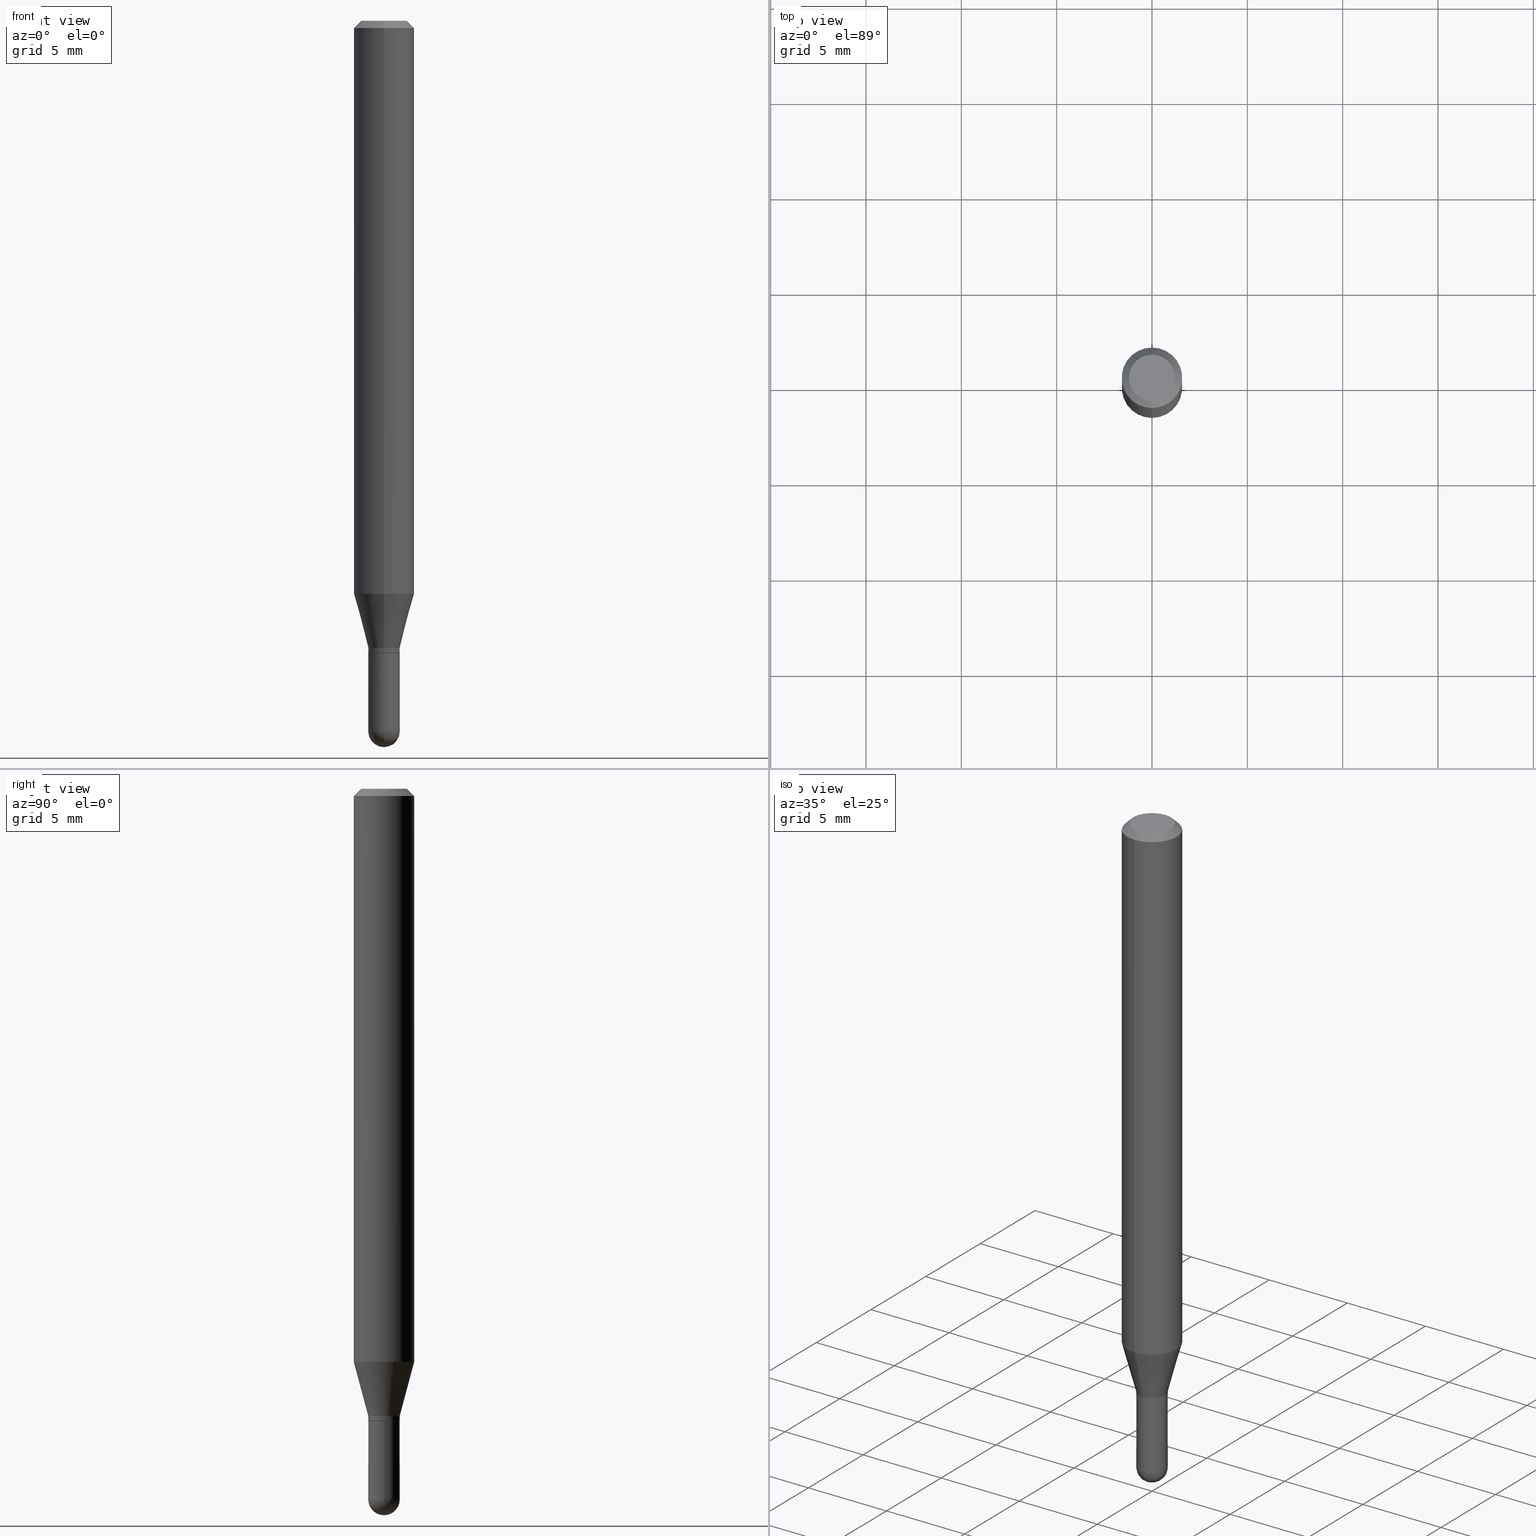
[diagram: canonical four-view strip — front | top / right | iso, engineering-drawing reading convention]
A machine part, canonical four-view strip (front | top / right | iso — engineering-drawing reading convention). The complete STEP part file that produces these views, byte-faithful:
ISO-10303-21;
HEADER;
FILE_DESCRIPTION (( 'STEP AP203' ),
    '1' );
FILE_NAME ('00939.STEP',
    '2024-03-07T19:03:50',
    ( '' ),
    ( '' ),
    'SwSTEP 2.0',
    'SolidWorks 2023',
    '' );
FILE_SCHEMA (( 'CONFIG_CONTROL_DESIGN' ));
ENDSEC;

DATA;
#1 = CARTESIAN_POINT ( 'NONE',  ( -2.269462870247733265E-16, -0.03250000000000471262, -1.295000000000000151 ) ) ;
#2 = ADVANCED_FACE ( 'NONE', ( #304 ), #237, .T. ) ;
#3 = DIRECTION ( 'NONE',  ( -2.445483904847070983E-29, 3.491459716699893676E-15, 1.000000000000000000 ) ) ;
#4 = ORIENTED_EDGE ( 'NONE', *, *, #117, .T. ) ;
#5 = VERTEX_POINT ( 'NONE', #261 ) ;
#6 = VERTEX_POINT ( 'NONE', #15 ) ;
#7 = DIRECTION ( 'NONE',  ( -2.445483904847070703E-29, 3.491459716699893676E-15, 1.000000000000000000 ) ) ;
#8 = AXIS2_PLACEMENT_3D ( 'NONE', #371, #413, #268 ) ;
#9 = ADVANCED_FACE ( 'NONE', ( #407 ), #225, .F. ) ;
#10 = APPROVAL_DATE_TIME ( #400, #178 ) ;
#11 = CC_DESIGN_PERSON_AND_ORGANIZATION_ASSIGNMENT ( #161, #122, ( #412 ) ) ;
#12 = PERSON_AND_ORGANIZATION_ROLE ( 'design_owner' ) ;
#13 = FACE_OUTER_BOUND ( 'NONE', #449, .T. ) ;
#14 = CARTESIAN_POINT ( 'NONE',  ( 3.668225857270608366E-31, -5.237189575049843177E-17, -0.01500000000000000812 ) ) ;
#15 = CARTESIAN_POINT ( 'NONE',  ( 0.03250000000000000111, -4.783329434215109105E-15, -1.305000000000000160 ) ) ;
#16 = DATE_TIME_ROLE ( 'creation_date' ) ;
#17 = DIRECTION ( 'NONE',  ( -2.445483904847070703E-29, 3.491459716699893676E-15, 1.000000000000000000 ) ) ;
#18 = AXIS2_PLACEMENT_3D ( 'NONE', #465, #90, #111 ) ;
#19 = ORIENTED_EDGE ( 'NONE', *, *, #83, .T. ) ;
#20 = ORIENTED_EDGE ( 'NONE', *, *, #229, .T. ) ;
#21 = PERSON ( 'UNSPECIFIED', 'UNSPECIFIED', 'UNSPECIFIED', ('UNSPECIFIED'), ('UNSPECIFIED'), ('UNSPECIFIED') ) ;
#22 = CALENDAR_DATE ( 2024, 7, 3 ) ;
#23 = FACE_OUTER_BOUND ( 'NONE', #457, .T. ) ;
#24 = DIRECTION ( 'NONE',  ( 1.000000000000000000, -6.982962677686267499E-15, 4.876176775795936353E-29 ) ) ;
#25 = EDGE_CURVE ( 'NONE', #87, #495, #62, .T. ) ;
#26 = CIRCLE ( 'NONE', #171, 0.03250000000000000111 ) ;
#27 = ORIENTED_EDGE ( 'NONE', *, *, #210, .F. ) ;
#28 = CC_DESIGN_PERSON_AND_ORGANIZATION_ASSIGNMENT ( #359, #159, ( #492 ) ) ;
#29 = FACE_OUTER_BOUND ( 'NONE', #106, .T. ) ;
#30 = EDGE_LOOP ( 'NONE', ( #103, #140, #436, #460 ) ) ;
#31 = CYLINDRICAL_SURFACE ( 'NONE', #191, 0.03250000000000005662 ) ;
#32 = ADVANCED_FACE ( 'NONE', ( #23 ), #217, .T. ) ;
#33 = DIRECTION ( 'NONE',  ( -7.105427357601001859E-15, -1.000000000000000000, 0.000000000000000000 ) ) ;
#34 = CARTESIAN_POINT ( 'NONE',  ( -2.234548056859285938E-16, -0.03200000000000455258, -1.305000000000000160 ) ) ;
#35 = EDGE_LOOP ( 'NONE', ( #329, #19, #355, #415 ) ) ;
#36 = AXIS2_PLACEMENT_3D ( 'NONE', #162, #37, #356 ) ;
#37 = DIRECTION ( 'NONE',  ( 2.445483904847070703E-29, -3.491459716699893676E-15, -1.000000000000000000 ) ) ;
#38 = CARTESIAN_POINT ( 'NONE',  ( 3.191356495825427860E-29, -4.556354930293361468E-15, -1.305000000000000160 ) ) ;
#39 = DIRECTION ( 'NONE',  ( -2.445483904847070703E-29, 3.491459716699893676E-15, 1.000000000000000000 ) ) ;
#40 = CARTESIAN_POINT ( 'NONE',  ( 4.440892098500912124E-16, 0.06249999999999582972, -1.183038475772935527 ) ) ;
#41 = ADVANCED_FACE ( 'NONE', ( #260 ), #221, .F. ) ;
#42 = AXIS2_PLACEMENT_3D ( 'NONE', #408, #214, #101 ) ;
#43 = ORIENTED_EDGE ( 'NONE', *, *, #255, .F. ) ;
#44 = CIRCLE ( 'NONE', #482, 0.03250000000000018846 ) ;
#45 = LINE ( 'NONE', #316, #94 ) ;
#46 = FACE_OUTER_BOUND ( 'NONE', #308, .T. ) ;
#47 = SECURITY_CLASSIFICATION_LEVEL ( 'unclassified' ) ;
#48 = DIRECTION ( 'NONE',  ( -2.445468806185136597E-29, 3.491481338843145583E-15, 1.000000000000000000 ) ) ;
#49 = ADVANCED_FACE ( 'NONE', ( #200 ), #153, .F. ) ;
#50 = EDGE_CURVE ( 'NONE', #270, #78, #207, .T. ) ;
#51 = APPROVAL_ROLE ( '' ) ;
#52 = CIRCLE ( 'NONE', #402, 0.03250000000000000111 ) ;
#53 = CIRCLE ( 'NONE', #116, 0.06250000000000000000 ) ;
#54 = DIRECTION ( 'NONE',  ( -6.982962677686265922E-15, -1.000000000000000000, 0.000000000000000000 ) ) ;
#55 = CALENDAR_DATE ( 2024, 7, 3 ) ;
#56 = CARTESIAN_POINT ( 'NONE',  ( 3.191356495825427860E-29, -4.556354930293361468E-15, -1.305000000000000160 ) ) ;
#57 = ORIENTED_EDGE ( 'NONE', *, *, #420, .F. ) ;
#58 = DIRECTION ( 'NONE',  ( -2.445468806185136597E-29, 3.491481338843145583E-15, 1.000000000000000000 ) ) ;
#59 = CIRCLE ( 'NONE', #311, 0.03250000000000018846 ) ;
#60 = VECTOR ( 'NONE', #479, 39.37007874015748143 ) ;
#61 = DIRECTION ( 'NONE',  ( -2.445468806185136877E-29, 3.491481338843145188E-15, 1.000000000000000000 ) ) ;
#62 = LINE ( 'NONE', #222, #511 ) ;
#63 = DIRECTION ( 'NONE',  ( -6.982962677686265922E-15, -1.000000000000000000, 3.491459716699893676E-15 ) ) ;
#64 = EDGE_CURVE ( 'NONE', #97, #78, #157, .T. ) ;
#65 = EDGE_CURVE ( 'NONE', #300, #279, #388, .T. ) ;
#66 = ORIENTED_EDGE ( 'NONE', *, *, #325, .T. ) ;
#67 = DIRECTION ( 'NONE',  ( 6.982962677686265922E-15, 1.000000000000000000, 0.000000000000000000 ) ) ;
#68 = CC_DESIGN_APPROVAL ( #91, ( #412 ) ) ;
#69 = VERTEX_POINT ( 'NONE', #40 ) ;
#70 = LINE ( 'NONE', #362, #60 ) ;
#71 = EDGE_LOOP ( 'NONE', ( #66, #77, #454, #73 ) ) ;
#72 = DIRECTION ( 'NONE',  ( -1.000000000000000000, 7.105427357601001070E-15, -4.926315508542082329E-29 ) ) ;
#73 = ORIENTED_EDGE ( 'NONE', *, *, #65, .F. ) ;
#74 = FACE_OUTER_BOUND ( 'NONE', #71, .T. ) ;
#75 = DIRECTION ( 'NONE',  ( -2.445483904847070983E-29, 3.491459716699893676E-15, 1.000000000000000000 ) ) ;
#76 = EDGE_CURVE ( 'NONE', #78, #263, #297, .T. ) ;
#77 = ORIENTED_EDGE ( 'NONE', *, *, #167, .T. ) ;
#78 = VERTEX_POINT ( 'NONE', #319 ) ;
#79 = AXIS2_PLACEMENT_3D ( 'NONE', #430, #312, #234 ) ;
#80 = AXIS2_PLACEMENT_3D ( 'NONE', #204, #72, #33 ) ;
#81 = DIRECTION ( 'NONE',  ( -6.982962677686265133E-15, -1.000000000000000000, 0.000000000000000000 ) ) ;
#82 = CARTESIAN_POINT ( 'NONE',  ( 3.166901656776957032E-29, -4.521440333126363352E-15, -1.295000000000000151 ) ) ;
#83 = EDGE_CURVE ( 'NONE', #499, #300, #129, .T. ) ;
#84 = CARTESIAN_POINT ( 'NONE',  ( 2.167028059228140305E-46, -3.093903484196739978E-32, -8.861346643635572153E-18 ) ) ;
#85 = DIRECTION ( 'NONE',  ( 1.000000000000000000, -6.982962677686258033E-15, 0.000000000000000000 ) ) ;
#86 = CLOSED_SHELL ( 'NONE', ( #212, #323, #32, #128, #2, #99, #251, #394, #49, #9, #177, #295 ) ) ;
#87 = VERTEX_POINT ( 'NONE', #504 ) ;
#88 = CIRCLE ( 'NONE', #18, 0.03250000000000000111 ) ;
#89 = DIRECTION ( 'NONE',  ( -1.000000000000000000, 6.982962677686265922E-15, -4.883557194083112340E-29 ) ) ;
#90 = DIRECTION ( 'NONE',  ( -2.445468806185136597E-29, 3.491481338843145583E-15, 1.000000000000000000 ) ) ;
#91 = APPROVAL ( #348, 'UNSPECIFIED' ) ;
#92 = DIRECTION ( 'NONE',  ( 1.000000000000000000, 0.000000000000000000, 0.000000000000000000 ) ) ;
#93 = VECTOR ( 'NONE', #405, 39.37007874015748143 ) ;
#94 = VECTOR ( 'NONE', #118, 39.37007874015748143 ) ;
#95 = CC_DESIGN_APPROVAL ( #178, ( #339 ) ) ;
#96 = PERSON_AND_ORGANIZATION ( #21, #182 ) ;
#97 = VERTEX_POINT ( 'NONE', #464 ) ;
#98 = CARTESIAN_POINT ( 'NONE',  ( 0.000000000000000000, 0.000000000000000000, 0.000000000000000000 ) ) ;
#99 = ADVANCED_FACE ( 'NONE', ( #393 ), #105, .T. ) ;
#100 = DIRECTION ( 'NONE',  ( -2.445483904847070703E-29, 3.491459716699893676E-15, 1.000000000000000000 ) ) ;
#101 = DIRECTION ( 'NONE',  ( -6.982962677686265922E-15, -1.000000000000000000, 3.491459716699893676E-15 ) ) ;
#102 = ORIENTED_EDGE ( 'NONE', *, *, #273, .F. ) ;
#103 = ORIENTED_EDGE ( 'NONE', *, *, #288, .T. ) ;
#104 = CARTESIAN_POINT ( 'NONE',  ( 4.364351673553919652E-16, 0.06249999999999995143, -0.01500000000000022669 ) ) ;
#105 = CONICAL_SURFACE ( 'NONE', #115, 0.03250000000000018846, 0.2617993877991506846 ) ;
#106 = EDGE_LOOP ( 'NONE', ( #444, #365, #509, #102 ) ) ;
#107 = DIRECTION ( 'NONE',  ( 6.982962677686265922E-15, 1.000000000000000000, 0.000000000000000000 ) ) ;
#108 = AXIS2_PLACEMENT_3D ( 'NONE', #38, #281, #81 ) ;
#109 = LOCAL_TIME ( 14, 3, 50.00000000000000000, #456 ) ;
#110 = ORIENTED_EDGE ( 'NONE', *, *, #255, .T. ) ;
#111 = DIRECTION ( 'NONE',  ( 1.000000000000000000, -6.982962677686258033E-15, 0.000000000000000000 ) ) ;
#112 = DIRECTION ( 'NONE',  ( -2.445483904847070703E-29, 3.491459716699893676E-15, 1.000000000000000000 ) ) ;
#113 = MANIFOLD_SOLID_BREP ( 'Body-Move/Copy2[1]', #491 ) ;
#114 = CARTESIAN_POINT ( 'NONE',  ( 3.375077994860785550E-16, 0.03249999999999567124, -1.295000000000000151 ) ) ;
#115 = AXIS2_PLACEMENT_3D ( 'NONE', #435, #39, #156 ) ;
#116 = AXIS2_PLACEMENT_3D ( 'NONE', #166, #332, #445 ) ;
#117 = EDGE_CURVE ( 'NONE', #424, #341, #59, .T. ) ;
#118 = DIRECTION ( 'NONE',  ( -2.445483904847070983E-29, 3.491459716699893676E-15, 1.000000000000000000 ) ) ;
#119 = EDGE_CURVE ( 'NONE', #483, #341, #353, .T. ) ;
#120 = FACE_OUTER_BOUND ( 'NONE', #294, .T. ) ;
#121 = DIRECTION ( 'NONE',  ( -6.982962677686265133E-15, -1.000000000000000000, 0.000000000000000000 ) ) ;
#122 = PERSON_AND_ORGANIZATION_ROLE ( 'classification_officer' ) ;
#123 = DIRECTION ( 'NONE',  ( -6.982962677686266711E-15, -1.000000000000000000, 0.000000000000000000 ) ) ;
#124 = DIRECTION ( 'NONE',  ( -6.982962677686265922E-15, -1.000000000000000000, 3.483106191921935554E-15 ) ) ;
#125 = EDGE_CURVE ( 'NONE', #69, #379, #45, .T. ) ;
#126 = APPLICATION_CONTEXT ( 'configuration controlled 3d designs of mechanical parts and assemblies' ) ;
#127 = DIRECTION ( 'NONE',  ( 0.000000000000000000, 0.000000000000000000, 1.000000000000000000 ) ) ;
#128 = ADVANCED_FACE ( 'NONE', ( #120 ), #287, .T. ) ;
#129 = CIRCLE ( 'NONE', #108, 0.03200000000000000067 ) ;
#130 = DIRECTION ( 'NONE',  ( -6.982962677686265922E-15, -1.000000000000000000, 4.370956789862821150E-15 ) ) ;
#131 =( CONVERSION_BASED_UNIT ( 'INCH', #493 ) LENGTH_UNIT ( ) NAMED_UNIT ( #230 ) );
#132 = ORIENTED_EDGE ( 'NONE', *, *, #370, .F. ) ;
#133 = CYLINDRICAL_SURFACE ( 'NONE', #429, 0.03250000000000005662 ) ;
#134 = VERTEX_POINT ( 'NONE', #466 ) ;
#135 = EDGE_CURVE ( 'NONE', #223, #5, #382, .T. ) ;
#136 = DATE_TIME_ROLE ( 'classification_date' ) ;
#137 = ORIENTED_EDGE ( 'NONE', *, *, #494, .T. ) ;
#138 = AXIS2_PLACEMENT_3D ( 'NONE', #426, #235, #391 ) ;
#139 = CONICAL_SURFACE ( 'NONE', #313, 0.03200000000000000067, 0.7853981633974739252 ) ;
#140 = ORIENTED_EDGE ( 'NONE', *, *, #119, .T. ) ;
#141 = ORIENTED_EDGE ( 'NONE', *, *, #76, .T. ) ;
#142 = CARTESIAN_POINT ( 'NONE',  ( 3.191356495825427860E-29, -4.556354930293361468E-15, -1.305000000000000160 ) ) ;
#143 = ORIENTED_EDGE ( 'NONE', *, *, #273, .T. ) ;
#144 = ORIENTED_EDGE ( 'NONE', *, *, #303, .T. ) ;
#145 = CARTESIAN_POINT ( 'NONE',  ( 3.668225857270608366E-31, -5.237189575049843177E-17, -0.01500000000000000812 ) ) ;
#146 = CARTESIAN_POINT ( 'NONE',  ( -2.269462870248040428E-16, -0.03250000000000005662, 1.134724407927467377E-16 ) ) ;
#147 = ORIENTED_EDGE ( 'NONE', *, *, #446, .T. ) ;
#148 = EDGE_CURVE ( 'NONE', #5, #223, #447, .T. ) ;
#149 = EDGE_CURVE ( 'NONE', #495, #379, #248, .T. ) ;
#150 = VECTOR ( 'NONE', #163, 39.37007874015748143 ) ;
#151 = DIRECTION ( 'NONE',  ( -2.445468806185136597E-29, 3.491481338843145583E-15, 1.000000000000000000 ) ) ;
#152 = CARTESIAN_POINT ( 'NONE',  ( 3.585946182636855061E-29, -5.127728966849546308E-15, -1.467500000000000027 ) ) ;
#153 = PLANE ( 'NONE',  #367 ) ;
#154 = EDGE_CURVE ( 'NONE', #483, #279, #417, .T. ) ;
#155 = ORIENTED_EDGE ( 'NONE', *, *, #25, .T. ) ;
#156 = DIRECTION ( 'NONE',  ( -6.982962677686266711E-15, -1.000000000000000000, 0.000000000000000000 ) ) ;
#157 = CIRCLE ( 'NONE', #505, 0.03250000000000000111 ) ;
#158 = LOCAL_TIME ( 14, 3, 50.00000000000000000, #197 ) ;
#159 = PERSON_AND_ORGANIZATION_ROLE ( 'design_supplier' ) ;
#160 = DIRECTION ( 'NONE',  ( -2.445468806185136597E-29, 3.491481338843145583E-15, 1.000000000000000000 ) ) ;
#161 = PERSON_AND_ORGANIZATION ( #21, #182 ) ;
#162 = CARTESIAN_POINT ( 'NONE',  ( 3.668225857270608366E-31, -5.237189575049843177E-17, -0.01500000000000000812 ) ) ;
#163 = DIRECTION ( 'NONE',  ( -4.851104656540964275E-15, -0.7071067811865500152, -0.7071067811865450192 ) ) ;
#164 = AXIS2_PLACEMENT_3D ( 'NONE', #84, #241, #246 ) ;
#165 = ORIENTED_EDGE ( 'NONE', *, *, #148, .T. ) ;
#166 = CARTESIAN_POINT ( 'NONE',  ( 2.893101551317524200E-29, -4.130531181467246054E-15, -1.183038475772935305 ) ) ;
#167 = EDGE_CURVE ( 'NONE', #499, #483, #334, .T. ) ;
#168 = CARTESIAN_POINT ( 'NONE',  ( 0.000000000000000000, 0.000000000000000000, 0.000000000000000000 ) ) ;
#169 = CARTESIAN_POINT ( 'NONE',  ( -4.364351673553912750E-16, -0.06250000000000005551, -0.01499999999999979128 ) ) ;
#170 = CARTESIAN_POINT ( 'NONE',  ( 3.191356495825427860E-29, -4.556354930293361468E-15, -1.305000000000000160 ) ) ;
#171 = AXIS2_PLACEMENT_3D ( 'NONE', #327, #160, #250 ) ;
#172 = CYLINDRICAL_SURFACE ( 'NONE', #345, 0.03250000000000000111 ) ;
#173 = CC_DESIGN_APPROVAL ( #195, ( #492 ) ) ;
#174 = PERSON_AND_ORGANIZATION_ROLE ( 'creator' ) ;
#175 = ORIENTED_EDGE ( 'NONE', *, *, #325, .F. ) ;
#176 = ORIENTED_EDGE ( 'NONE', *, *, #149, .F. ) ;
#177 = ADVANCED_FACE ( 'NONE', ( #486 ), #283, .T. ) ;
#178 = APPROVAL ( #213, 'UNSPECIFIED' ) ;
#179 = FACE_OUTER_BOUND ( 'NONE', #30, .T. ) ;
#180 = EDGE_LOOP ( 'NONE', ( #318, #165 ) ) ;
#181 = VECTOR ( 'NONE', #61, 39.37007874015748143 ) ;
#182 = ORGANIZATION ( 'UNSPECIFIED', 'UNSPECIFIED', '' ) ;
#183 = ORIENTED_EDGE ( 'NONE', *, *, #420, .T. ) ;
#184 = ORIENTED_EDGE ( 'NONE', *, *, #135, .F. ) ;
#185 = CARTESIAN_POINT ( 'NONE',  ( 2.309263891220655525E-16, 0.03249999999999567124, -1.295000000000000151 ) ) ;
#186 = ADVANCED_FACE ( 'NONE', ( #13 ), #438, .T. ) ;
#187 = ORIENTED_EDGE ( 'NONE', *, *, #498, .T. ) ;
#188 = CARTESIAN_POINT ( 'NONE',  ( 3.191356495825427860E-29, -4.556354930293361468E-15, -1.305000000000000160 ) ) ;
#189 = CARTESIAN_POINT ( 'NONE',  ( 3.316907271900976096E-16, 0.04749999999999999362, -1.702750098650627183E-16 ) ) ;
#190 = AXIS2_PLACEMENT_3D ( 'NONE', #437, #203, #286 ) ;
#191 = AXIS2_PLACEMENT_3D ( 'NONE', #351, #289, #477 ) ;
#192 = CARTESIAN_POINT ( 'NONE',  ( 3.166901656776957032E-29, -4.521440333126363352E-15, -1.295000000000000151 ) ) ;
#193 = DIRECTION ( 'NONE',  ( -2.445483904847070703E-29, 3.491459716699893676E-15, 1.000000000000000000 ) ) ;
#194 = EDGE_CURVE ( 'NONE', #223, #379, #361, .T. ) ;
#195 = APPROVAL ( #244, 'UNSPECIFIED' ) ;
#196 = CARTESIAN_POINT ( 'NONE',  ( 3.588725473076687933E-29, -5.123748864752316500E-15, -1.467500000000000027 ) ) ;
#197 = COORDINATED_UNIVERSAL_TIME_OFFSET ( 5, 0, .BEHIND. ) ;
#198 = PERSON_AND_ORGANIZATION_ROLE ( 'creator' ) ;
#199 = ORIENTED_EDGE ( 'NONE', *, *, #83, .F. ) ;
#200 = FACE_OUTER_BOUND ( 'NONE', #180, .T. ) ;
#201 = AXIS2_PLACEMENT_3D ( 'NONE', #290, #89, #67 ) ;
#202 = APPROVAL_PERSON_ORGANIZATION ( #96, #178, #51 ) ;
#203 = DIRECTION ( 'NONE',  ( -2.445483904847070703E-29, 3.491459716699893676E-15, 1.000000000000000000 ) ) ;
#204 = CARTESIAN_POINT ( 'NONE',  ( 3.585946182636855061E-29, -5.127728966849546308E-15, -1.467500000000000027 ) ) ;
#205 = ORIENTED_EDGE ( 'NONE', *, *, #344, .T. ) ;
#206 = DIRECTION ( 'NONE',  ( 1.000000000000000000, -6.982962677686267499E-15, 4.876176775795936353E-29 ) ) ;
#207 = CIRCLE ( 'NONE', #79, 0.03250000000000000111 ) ;
#208 = CIRCLE ( 'NONE', #373, 0.06250000000000000000 ) ;
#209 = DIRECTION ( 'NONE',  ( -2.445483904847070703E-29, 3.491459716699893676E-15, 1.000000000000000000 ) ) ;
#210 = EDGE_CURVE ( 'NONE', #270, #6, #272, .T. ) ;
#211 = LINE ( 'NONE', #296, #150 ) ;
#212 = ADVANCED_FACE ( 'NONE', ( #179 ), #133, .T. ) ;
#213 = APPROVAL_STATUS ( 'not_yet_approved' ) ;
#214 = DIRECTION ( 'NONE',  ( -2.445483904847070703E-29, 3.491459716699893676E-15, 1.000000000000000000 ) ) ;
#215 = PERSON_AND_ORGANIZATION ( #21, #182 ) ;
#216 = EDGE_LOOP ( 'NONE', ( #175, #199 ) ) ;
#217 = CONICAL_SURFACE ( 'NONE', #291, 0.06250000000000000000, 0.7853981633974483900 ) ;
#218 = DIRECTION ( 'NONE',  ( 4.937700262164548042E-15, 0.7071067811865451302, -0.7071067811865499042 ) ) ;
#219 = VECTOR ( 'NONE', #350, 39.37007874015748143 ) ;
#220 = ADVANCED_FACE ( 'NONE', ( #301 ), #172, .T. ) ;
#221 = PLANE ( 'NONE',  #381 ) ;
#222 = CARTESIAN_POINT ( 'NONE',  ( -4.364351673553916201E-16, -0.06250000000000000000, 2.182162322937433548E-16 ) ) ;
#223 = VERTEX_POINT ( 'NONE', #451 ) ;
#224 = ORIENTED_EDGE ( 'NONE', *, *, #194, .T. ) ;
#225 = PLANE ( 'NONE',  #390 ) ;
#226 = CARTESIAN_POINT ( 'NONE',  ( 0.03250000000000000111, -2.269462870248036977E-16, 1.584757452133679343E-30 ) ) ;
#227 = AXIS2_PLACEMENT_3D ( 'NONE', #357, #193, #442 ) ;
#228 = CIRCLE ( 'NONE', #496, 0.03200000000000000067 ) ;
#229 = EDGE_CURVE ( 'NONE', #134, #6, #52, .T. ) ;
#230 = DIMENSIONAL_EXPONENTS ( 1.000000000000000000, 0.000000000000000000, 0.000000000000000000, 0.000000000000000000, 0.000000000000000000, 0.000000000000000000, 0.000000000000000000 ) ;
#231 = CYLINDRICAL_SURFACE ( 'NONE', #257, 0.03250000000000000111 ) ;
#232 = VERTEX_POINT ( 'NONE', #490 ) ;
#233 = CARTESIAN_POINT ( 'NONE',  ( -2.269462870247719953E-16, -0.03250000000000458772, -1.304500000000000215 ) ) ;
#234 = DIRECTION ( 'NONE',  ( 1.000000000000000000, -6.982962677686258033E-15, 0.000000000000000000 ) ) ;
#235 = DIRECTION ( 'NONE',  ( -2.445483904847070703E-29, 3.491459716699893676E-15, 1.000000000000000000 ) ) ;
#236 = CC_DESIGN_PERSON_AND_ORGANIZATION_ASSIGNMENT ( #299, #12, ( #485 ) ) ;
#237 = CONICAL_SURFACE ( 'NONE', #8, 0.03250000000000018846, 0.2617993877991506846 ) ;
#238 = APPROVAL_PERSON_ORGANIZATION ( #471, #195, #470 ) ;
#239 = ORIENTED_EDGE ( 'NONE', *, *, #154, .T. ) ;
#240 = APPROVAL_DATE_TIME ( #439, #195 ) ;
#241 = DIRECTION ( 'NONE',  ( -2.445483904847070703E-29, 3.491459716699893676E-15, 1.000000000000000000 ) ) ;
#242 = CALENDAR_DATE ( 2024, 7, 3 ) ;
#243 = DIRECTION ( 'NONE',  ( 6.982962677686265922E-15, 1.000000000000000000, -3.483106191921935554E-15 ) ) ;
#244 = APPROVAL_STATUS ( 'not_yet_approved' ) ;
#245 = ORIENTED_EDGE ( 'NONE', *, *, #330, .T. ) ;
#246 = DIRECTION ( 'NONE',  ( -6.982962677686266711E-15, -1.000000000000000000, 3.491459716699894071E-15 ) ) ;
#247 = DIRECTION ( 'NONE',  ( -6.982962677686265133E-15, -1.000000000000000000, 0.000000000000000000 ) ) ;
#248 = CIRCLE ( 'NONE', #227, 0.06250000000000000000 ) ;
#249 = APPLICATION_CONTEXT ( 'configuration controlled 3d designs of mechanical parts and assemblies' ) ;
#250 = DIRECTION ( 'NONE',  ( 1.000000000000000000, -6.982962677686258033E-15, 0.000000000000000000 ) ) ;
#251 = ADVANCED_FACE ( 'NONE', ( #374 ), #411, .T. ) ;
#252 = ORIENTED_EDGE ( 'NONE', *, *, #459, .F. ) ;
#253 = CARTESIAN_POINT ( 'NONE',  ( 0.03250000000000000111, -5.067012292996114873E-15, -1.467500000000000027 ) ) ;
#254 = CARTESIAN_POINT ( 'NONE',  ( 0.000000000000000000, 0.000000000000000000, 0.000000000000000000 ) ) ;
#255 = EDGE_CURVE ( 'NONE', #6, #134, #26, .T. ) ;
#256 = MECHANICAL_CONTEXT ( 'NONE', #126, 'mechanical' ) ;
#257 = AXIS2_PLACEMENT_3D ( 'NONE', #335, #48, #206 ) ;
#258 = CARTESIAN_POINT ( 'NONE',  ( 2.273736754432639145E-16, 0.03199999999999544181, -1.305000000000000160 ) ) ;
#259 =( LENGTH_UNIT ( ) NAMED_UNIT ( * ) SI_UNIT ( $, .METRE. ) );
#260 = FACE_OUTER_BOUND ( 'NONE', #310, .T. ) ;
#261 = CARTESIAN_POINT ( 'NONE',  ( -3.773273898774340269E-16, -0.04749999999999999362, 1.569829898996093817E-16 ) ) ;
#262 = DIRECTION ( 'NONE',  ( -2.445483904847070703E-29, 3.491459716699893676E-15, 1.000000000000000000 ) ) ;
#263 = VERTEX_POINT ( 'NONE', #328 ) ;
#264 = DIRECTION ( 'NONE',  ( 1.000000000000000000, -6.982962677686258033E-15, 0.000000000000000000 ) ) ;
#265 = ORIENTED_EDGE ( 'NONE', *, *, #330, .F. ) ;
#266 = VECTOR ( 'NONE', #218, 39.37007874015748143 ) ;
#267 = CC_DESIGN_DATE_AND_TIME_ASSIGNMENT ( #401, #16, ( #339 ) ) ;
#268 = DIRECTION ( 'NONE',  ( -6.982962677686266711E-15, -1.000000000000000000, 0.000000000000000000 ) ) ;
#269 = DATE_AND_TIME ( #242, #158 ) ;
#270 = VERTEX_POINT ( 'NONE', #253 ) ;
#271 = ORIENTED_EDGE ( 'NONE', *, *, #125, .F. ) ;
#272 = LINE ( 'NONE', #226, #181 ) ;
#273 = EDGE_CURVE ( 'NONE', #232, #270, #461, .T. ) ;
#274 = DATE_AND_TIME ( #22, #109 ) ;
#275 = DIRECTION ( 'NONE',  ( -2.445483904847070703E-29, 3.491459716699893676E-15, 1.000000000000000000 ) ) ;
#276 = DIRECTION ( 'NONE',  ( -2.445483904847070703E-29, 3.491459716699893676E-15, 1.000000000000000000 ) ) ;
#277 = DIRECTION ( 'NONE',  ( -6.982962677686266711E-15, -1.000000000000000000, 0.000000000000000000 ) ) ;
#278 = EDGE_LOOP ( 'NONE', ( #4, #183, #317, #421 ) ) ;
#279 = VERTEX_POINT ( 'NONE', #233 ) ;
#280 = CC_DESIGN_PERSON_AND_ORGANIZATION_ASSIGNMENT ( #215, #174, ( #339 ) ) ;
#281 = DIRECTION ( 'NONE',  ( -2.445483904847070703E-29, 3.491459716699893676E-15, 1.000000000000000000 ) ) ;
#282 = DIRECTION ( 'NONE',  ( -2.445468806185136597E-29, 3.491481338843145583E-15, 1.000000000000000000 ) ) ;
#283 = CONICAL_SURFACE ( 'NONE', #481, 0.03200000000000000067, 0.7853981633974739252 ) ;
#284 = ORIENTED_EDGE ( 'NONE', *, *, #50, .T. ) ;
#285 = AXIS2_PLACEMENT_3D ( 'NONE', #398, #151, #85 ) ;
#286 = DIRECTION ( 'NONE',  ( -6.982962677686265922E-15, -1.000000000000000000, 3.491459716699893676E-15 ) ) ;
#287 = CYLINDRICAL_SURFACE ( 'NONE', #190, 0.06250000000000000000 ) ;
#288 = EDGE_CURVE ( 'NONE', #279, #483, #337, .T. ) ;
#289 = DIRECTION ( 'NONE',  ( -2.445483904847070703E-29, 3.491459716699893676E-15, 1.000000000000000000 ) ) ;
#290 = CARTESIAN_POINT ( 'NONE',  ( 3.585946182636855061E-29, -5.127728966849546308E-15, -1.467500000000000027 ) ) ;
#291 = AXIS2_PLACEMENT_3D ( 'NONE', #145, #363, #243 ) ;
#292 = LINE ( 'NONE', #185, #219 ) ;
#293 = MANIFOLD_SOLID_BREP ( 'Body-Move/Copy2[2]', #86 ) ;
#294 = EDGE_LOOP ( 'NONE', ( #187, #502, #176, #467 ) ) ;
#295 = ADVANCED_FACE ( 'NONE', ( #46 ), #31, .T. ) ;
#296 = CARTESIAN_POINT ( 'NONE',  ( -4.287811248607203282E-16, -0.06250000000000005551, -0.01499999999999979128 ) ) ;
#297 = CIRCLE ( 'NONE', #321, 0.03250000000000000111 ) ;
#298 = APPROVAL_PERSON_ORGANIZATION ( #376, #91, #375 ) ;
#299 = PERSON_AND_ORGANIZATION ( #21, #182 ) ;
#300 = VERTEX_POINT ( 'NONE', #387 ) ;
#301 = FACE_OUTER_BOUND ( 'NONE', #410, .T. ) ;
#302 =( NAMED_UNIT ( * ) SI_UNIT ( $, .STERADIAN. ) SOLID_ANGLE_UNIT ( ) );
#303 = EDGE_CURVE ( 'NONE', #97, #232, #474, .T. ) ;
#304 = FACE_OUTER_BOUND ( 'NONE', #278, .T. ) ;
#305 = ORIENTED_EDGE ( 'NONE', *, *, #119, .F. ) ;
#306 = EDGE_CURVE ( 'NONE', #424, #87, #70, .T. ) ;
#307 = ORIENTED_EDGE ( 'NONE', *, *, #494, .F. ) ;
#308 = EDGE_LOOP ( 'NONE', ( #305, #239, #205, #265 ) ) ;
#309 = FACE_OUTER_BOUND ( 'NONE', #497, .T. ) ;
#310 = EDGE_LOOP ( 'NONE', ( #110, #20 ) ) ;
#311 = AXIS2_PLACEMENT_3D ( 'NONE', #82, #112, #277 ) ;
#312 = DIRECTION ( 'NONE',  ( -2.445468806185136597E-29, 3.491481338843145583E-15, 1.000000000000000000 ) ) ;
#313 = AXIS2_PLACEMENT_3D ( 'NONE', #188, #275, #463 ) ;
#314 = ORIENTED_EDGE ( 'NONE', *, *, #488, .F. ) ;
#315 = DIRECTION ( 'NONE',  ( -1.000000000000000000, 6.982962677686265922E-15, -4.883557194083112340E-29 ) ) ;
#316 = CARTESIAN_POINT ( 'NONE',  ( 4.440892098500625669E-16, 0.06250000000000000000, -2.182162322937433548E-16 ) ) ;
#317 = ORIENTED_EDGE ( 'NONE', *, *, #498, .F. ) ;
#318 = ORIENTED_EDGE ( 'NONE', *, *, #135, .T. ) ;
#319 = CARTESIAN_POINT ( 'NONE',  ( 2.269462870248395415E-16, 0.03249999999999488021, -1.467500000000000027 ) ) ;
#320 = ORIENTED_EDGE ( 'NONE', *, *, #76, .F. ) ;
#321 = AXIS2_PLACEMENT_3D ( 'NONE', #196, #282, #476 ) ;
#322 = LOCAL_TIME ( 14, 3, 50.00000000000000000, #450 ) ;
#323 = ADVANCED_FACE ( 'NONE', ( #74 ), #139, .T. ) ;
#324 = CARTESIAN_POINT ( 'NONE',  ( 2.269462870248355479E-16, 0.03249999999999544226, -1.305000000000000160 ) ) ;
#325 = EDGE_CURVE ( 'NONE', #300, #499, #228, .T. ) ;
#326 = PERSON_AND_ORGANIZATION ( #21, #182 ) ;
#327 = CARTESIAN_POINT ( 'NONE',  ( 3.191336792071603685E-29, -4.556383147190305752E-15, -1.305000000000000160 ) ) ;
#328 = CARTESIAN_POINT ( 'NONE',  ( -0.03250000000000000111, -4.609139616849279150E-15, -1.467500000000000027 ) ) ;
#329 = ORIENTED_EDGE ( 'NONE', *, *, #167, .F. ) ;
#330 = EDGE_CURVE ( 'NONE', #341, #424, #44, .T. ) ;
#331 = AXIS2_PLACEMENT_3D ( 'NONE', #404, #262, #54 ) ;
#332 = DIRECTION ( 'NONE',  ( -2.445483904847070703E-29, 3.491459716699893676E-15, 1.000000000000000000 ) ) ;
#333 = CARTESIAN_POINT ( 'NONE',  ( -0.03250000000000000111, 2.309263891220325683E-16, -1.598653904332844407E-30 ) ) ;
#334 = LINE ( 'NONE', #258, #93 ) ;
#335 = CARTESIAN_POINT ( 'NONE',  ( 0.000000000000000000, 0.000000000000000000, 0.000000000000000000 ) ) ;
#336 = CARTESIAN_POINT ( 'NONE',  ( 3.191336792071603685E-29, -4.556383147190305752E-15, -1.305000000000000160 ) ) ;
#337 = CIRCLE ( 'NONE', #368, 0.03249999999999992478 ) ;
#338 = DIRECTION ( 'NONE',  ( -2.445483904847070142E-29, 3.491459716699893676E-15, 1.000000000000000000 ) ) ;
#339 = PRODUCT_DEFINITION ( 'UNKNOWN', '', #492, #480 ) ;
#340 = COORDINATED_UNIVERSAL_TIME_OFFSET ( 5, 0, .BEHIND. ) ;
#341 = VERTEX_POINT ( 'NONE', #114 ) ;
#342 = ADVANCED_FACE ( 'NONE', ( #29 ), #507, .T. ) ;
#343 = DIRECTION ( 'NONE',  ( -6.982962677686265922E-15, -1.000000000000000000, 3.491459716699893676E-15 ) ) ;
#344 = EDGE_CURVE ( 'NONE', #279, #424, #503, .T. ) ;
#345 = AXIS2_PLACEMENT_3D ( 'NONE', #98, #378, #24 ) ;
#346 = AXIS2_PLACEMENT_3D ( 'NONE', #14, #100, #124 ) ;
#347 = ORIENTED_EDGE ( 'NONE', *, *, #229, .F. ) ;
#348 = APPROVAL_STATUS ( 'not_yet_approved' ) ;
#349 = EDGE_LOOP ( 'NONE', ( #271, #441, #155, #380 ) ) ;
#350 = DIRECTION ( 'NONE',  ( 1.839019923739603076E-15, 0.2588190451025253469, 0.9659258262890670910 ) ) ;
#351 = CARTESIAN_POINT ( 'NONE',  ( 0.000000000000000000, 0.000000000000000000, 0.000000000000000000 ) ) ;
#352 = DIRECTION ( 'NONE',  ( -2.445483904847070703E-29, 3.491459716699893676E-15, 1.000000000000000000 ) ) ;
#353 = LINE ( 'NONE', #358, #397 ) ;
#354 = CONICAL_SURFACE ( 'NONE', #36, 0.06250000000000000000, 0.7853981633974483900 ) ;
#355 = ORIENTED_EDGE ( 'NONE', *, *, #65, .T. ) ;
#356 = DIRECTION ( 'NONE',  ( 6.982962677686265922E-15, 1.000000000000000000, -3.483106191921935554E-15 ) ) ;
#357 = CARTESIAN_POINT ( 'NONE',  ( 3.668225857270608366E-31, -5.237189575049843177E-17, -0.01500000000000000812 ) ) ;
#358 = CARTESIAN_POINT ( 'NONE',  ( 2.309263891220329134E-16, 0.03250000000000005662, -1.134724407927467377E-16 ) ) ;
#359 = PERSON_AND_ORGANIZATION ( #21, #182 ) ;
#360 = DIRECTION ( 'NONE',  ( 6.982962677686265922E-15, 1.000000000000000000, 0.000000000000000000 ) ) ;
#361 = LINE ( 'NONE', #104, #266 ) ;
#362 = CARTESIAN_POINT ( 'NONE',  ( -2.269462870247733265E-16, -0.03250000000000471262, -1.295000000000000151 ) ) ;
#363 = DIRECTION ( 'NONE',  ( 2.445483904847070703E-29, -3.491459716699893676E-15, -1.000000000000000000 ) ) ;
#364 = UNCERTAINTY_MEASURE_WITH_UNIT (LENGTH_MEASURE( 1.000000000000000082E-05 ), #131, 'distance_accuracy_value', 'NONE');
#365 = ORIENTED_EDGE ( 'NONE', *, *, #64, .T. ) ;
#366 = CARTESIAN_POINT ( 'NONE',  ( 2.893101551317524200E-29, -4.130531181467246054E-15, -1.183038475772935305 ) ) ;
#367 = AXIS2_PLACEMENT_3D ( 'NONE', #189, #396, #395 ) ;
#368 = AXIS2_PLACEMENT_3D ( 'NONE', #425, #385, #419 ) ;
#369 = APPLICATION_PROTOCOL_DEFINITION ( 'international standard', 'config_control_design', 1994, #126 ) ;
#370 = EDGE_CURVE ( 'NONE', #263, #232, #88, .T. ) ;
#371 = CARTESIAN_POINT ( 'NONE',  ( 3.166901656776957032E-29, -4.521440333126363352E-15, -1.295000000000000151 ) ) ;
#372 = CALENDAR_DATE ( 2024, 7, 3 ) ;
#373 = AXIS2_PLACEMENT_3D ( 'NONE', #366, #7, #130 ) ;
#374 = FACE_OUTER_BOUND ( 'NONE', #349, .T. ) ;
#375 = APPROVAL_ROLE ( '' ) ;
#376 = PERSON_AND_ORGANIZATION ( #21, #182 ) ;
#377 = DIRECTION ( 'NONE',  ( -2.445483904847070983E-29, 3.491459716699893676E-15, 1.000000000000000000 ) ) ;
#378 = DIRECTION ( 'NONE',  ( -2.445468806185136597E-29, 3.491481338843145583E-15, 1.000000000000000000 ) ) ;
#379 = VERTEX_POINT ( 'NONE', #422 ) ;
#380 = ORIENTED_EDGE ( 'NONE', *, *, #446, .F. ) ;
#381 = AXIS2_PLACEMENT_3D ( 'NONE', #324, #473, #423 ) ;
#382 = CIRCLE ( 'NONE', #164, 0.04749999999999999362 ) ;
#383 = VECTOR ( 'NONE', #3, 39.37007874015748143 ) ;
#384 = APPROVAL_DATE_TIME ( #274, #91 ) ;
#385 = DIRECTION ( 'NONE',  ( -2.445483904847070703E-29, 3.491459716699893676E-15, 1.000000000000000000 ) ) ;
#386 = ORIENTED_EDGE ( 'NONE', *, *, #370, .T. ) ;
#387 = CARTESIAN_POINT ( 'NONE',  ( -2.234548056859285938E-16, -0.03200000000000455258, -1.305000000000000160 ) ) ;
#388 = LINE ( 'NONE', #34, #472 ) ;
#389 = CALENDAR_DATE ( 2024, 7, 3 ) ;
#390 = AXIS2_PLACEMENT_3D ( 'NONE', #170, #338, #343 ) ;
#391 = DIRECTION ( 'NONE',  ( -6.982962677686266711E-15, -1.000000000000000000, 3.491459716699894071E-15 ) ) ;
#392 = ORIENTED_EDGE ( 'NONE', *, *, #210, .T. ) ;
#393 = FACE_OUTER_BOUND ( 'NONE', #434, .T. ) ;
#394 = ADVANCED_FACE ( 'NONE', ( #309 ), #354, .T. ) ;
#395 = DIRECTION ( 'NONE',  ( 6.982962677686265922E-15, 1.000000000000000000, -3.491459716699893676E-15 ) ) ;
#396 = DIRECTION ( 'NONE',  ( 2.445483904847070142E-29, -3.491459716699893676E-15, -1.000000000000000000 ) ) ;
#397 = VECTOR ( 'NONE', #75, 39.37007874015748143 ) ;
#398 = CARTESIAN_POINT ( 'NONE',  ( 3.588725473076687933E-29, -5.123748864752316500E-15, -1.467500000000000027 ) ) ;
#399 = ORIENTED_EDGE ( 'NONE', *, *, #194, .F. ) ;
#400 = DATE_AND_TIME ( #372, #322 ) ;
#401 = DATE_AND_TIME ( #55, #455 ) ;
#402 = AXIS2_PLACEMENT_3D ( 'NONE', #336, #58, #264 ) ;
#403 =( NAMED_UNIT ( * ) PLANE_ANGLE_UNIT ( ) SI_UNIT ( $, .RADIAN. ) );
#404 = CARTESIAN_POINT ( 'NONE',  ( 3.190133753873004374E-29, -4.554609200435012036E-15, -1.304500000000000215 ) ) ;
#405 = DIRECTION ( 'NONE',  ( 5.024295867788190974E-15, 0.7071067811865681119, 0.7071067811865270336 ) ) ;
#406 = CARTESIAN_POINT ( 'NONE',  ( 2.309263891220630874E-16, 0.03249999999999525491, -1.304500000000000215 ) ) ;
#407 = FACE_OUTER_BOUND ( 'NONE', #216, .T. ) ;
#408 = CARTESIAN_POINT ( 'NONE',  ( 0.000000000000000000, 0.000000000000000000, 0.000000000000000000 ) ) ;
#409 = APPLICATION_PROTOCOL_DEFINITION ( 'international standard', 'config_control_design', 1994, #249 ) ;
#410 = EDGE_LOOP ( 'NONE', ( #141, #453, #43, #27, #284 ) ) ;
#411 = CYLINDRICAL_SURFACE ( 'NONE', #42, 0.06250000000000000000 ) ;
#412 = SECURITY_CLASSIFICATION ( '', '', #47 ) ;
#413 = DIRECTION ( 'NONE',  ( -2.445483904847070703E-29, 3.491459716699893676E-15, 1.000000000000000000 ) ) ;
#414 = EDGE_LOOP ( 'NONE', ( #314, #386, #143, #392, #347 ) ) ;
#415 = ORIENTED_EDGE ( 'NONE', *, *, #154, .F. ) ;
#416 = SHAPE_DEFINITION_REPRESENTATION ( #475, #500 ) ;
#417 = CIRCLE ( 'NONE', #331, 0.03249999999999992478 ) ;
#418 =( GEOMETRIC_REPRESENTATION_CONTEXT ( 3 ) GLOBAL_UNCERTAINTY_ASSIGNED_CONTEXT ( ( #364 ) ) GLOBAL_UNIT_ASSIGNED_CONTEXT ( ( #131, #403, #302 ) ) REPRESENTATION_CONTEXT ( 'NONE', 'WORKASPACE' ) );
#419 = DIRECTION ( 'NONE',  ( -6.982962677686265922E-15, -1.000000000000000000, 0.000000000000000000 ) ) ;
#420 = EDGE_CURVE ( 'NONE', #341, #69, #292, .T. ) ;
#421 = ORIENTED_EDGE ( 'NONE', *, *, #306, .F. ) ;
#422 = CARTESIAN_POINT ( 'NONE',  ( 4.440892098500917054E-16, 0.06249999999999995143, -0.01500000000000022669 ) ) ;
#423 = DIRECTION ( 'NONE',  ( -1.000000000000000000, 6.982962677686265922E-15, -4.876176775795935793E-29 ) ) ;
#424 = VERTEX_POINT ( 'NONE', #1 ) ;
#425 = CARTESIAN_POINT ( 'NONE',  ( 3.190133753873004374E-29, -4.554609200435012036E-15, -1.304500000000000215 ) ) ;
#426 = CARTESIAN_POINT ( 'NONE',  ( 2.167028059228140305E-46, -3.093903484196739978E-32, -8.861346643635572153E-18 ) ) ;
#427 = ORIENTED_EDGE ( 'NONE', *, *, #306, .T. ) ;
#428 = ADVANCED_FACE ( 'NONE', ( #458 ), #231, .T. ) ;
#429 = AXIS2_PLACEMENT_3D ( 'NONE', #168, #17, #63 ) ;
#430 = CARTESIAN_POINT ( 'NONE',  ( 3.588725473076687933E-29, -5.123748864752316500E-15, -1.467500000000000027 ) ) ;
#431 = CIRCLE ( 'NONE', #346, 0.06250000000000000000 ) ;
#432 = CC_DESIGN_DATE_AND_TIME_ASSIGNMENT ( #269, #136, ( #412 ) ) ;
#433 = COORDINATED_UNIVERSAL_TIME_OFFSET ( 5, 0, .BEHIND. ) ;
#434 = EDGE_LOOP ( 'NONE', ( #57, #245, #427, #252 ) ) ;
#435 = CARTESIAN_POINT ( 'NONE',  ( 3.166901656776957032E-29, -4.521440333126363352E-15, -1.295000000000000151 ) ) ;
#436 = ORIENTED_EDGE ( 'NONE', *, *, #117, .F. ) ;
#437 = CARTESIAN_POINT ( 'NONE',  ( 0.000000000000000000, 0.000000000000000000, 0.000000000000000000 ) ) ;
#438 = SPHERICAL_SURFACE ( 'NONE', #201, 0.03250000000000000111 ) ;
#439 = DATE_AND_TIME ( #389, #506 ) ;
#440 = CARTESIAN_POINT ( 'NONE',  ( 3.585946182636855061E-29, -5.127728966849546308E-15, -1.467500000000000027 ) ) ;
#441 = ORIENTED_EDGE ( 'NONE', *, *, #459, .T. ) ;
#442 = DIRECTION ( 'NONE',  ( -6.982962677686265922E-15, -1.000000000000000000, 3.483106191921935554E-15 ) ) ;
#443 = VECTOR ( 'NONE', #452, 39.37007874015748143 ) ;
#444 = ORIENTED_EDGE ( 'NONE', *, *, #303, .F. ) ;
#445 = DIRECTION ( 'NONE',  ( -6.982962677686265922E-15, -1.000000000000000000, 4.370956789862821150E-15 ) ) ;
#446 = EDGE_CURVE ( 'NONE', #379, #495, #431, .T. ) ;
#447 = CIRCLE ( 'NONE', #138, 0.04749999999999999362 ) ;
#448 = AXIS2_PLACEMENT_3D ( 'NONE', #254, #127, #92 ) ;
#449 = EDGE_LOOP ( 'NONE', ( #478, #144, #132, #320 ) ) ;
#450 = COORDINATED_UNIVERSAL_TIME_OFFSET ( 5, 0, .BEHIND. ) ;
#451 = CARTESIAN_POINT ( 'NONE',  ( 3.840629472727447874E-16, 0.04749999999999999362, -1.747056831868805136E-16 ) ) ;
#452 = DIRECTION ( 'NONE',  ( -2.445468806185136877E-29, 3.491481338843145188E-15, 1.000000000000000000 ) ) ;
#453 = ORIENTED_EDGE ( 'NONE', *, *, #488, .T. ) ;
#454 = ORIENTED_EDGE ( 'NONE', *, *, #288, .F. ) ;
#455 = LOCAL_TIME ( 14, 3, 50.00000000000000000, #340 ) ;
#456 = COORDINATED_UNIVERSAL_TIME_OFFSET ( 5, 0, .BEHIND. ) ;
#457 = EDGE_LOOP ( 'NONE', ( #501, #137, #508, #399 ) ) ;
#458 = FACE_OUTER_BOUND ( 'NONE', #414, .T. ) ;
#459 = EDGE_CURVE ( 'NONE', #69, #87, #208, .T. ) ;
#460 = ORIENTED_EDGE ( 'NONE', *, *, #344, .F. ) ;
#461 = CIRCLE ( 'NONE', #285, 0.03250000000000000111 ) ;
#462 = CC_DESIGN_SECURITY_CLASSIFICATION ( #412, ( #492 ) ) ;
#463 = DIRECTION ( 'NONE',  ( -6.982962677686265133E-15, -1.000000000000000000, 0.000000000000000000 ) ) ;
#464 = CARTESIAN_POINT ( 'NONE',  ( 3.666813564057788459E-29, -5.239212059313334264E-15, -1.500000000000000222 ) ) ;
#465 = CARTESIAN_POINT ( 'NONE',  ( 3.588725473076687933E-29, -5.123748864752316500E-15, -1.467500000000000027 ) ) ;
#466 = CARTESIAN_POINT ( 'NONE',  ( -0.03250000000000000111, -4.609139616849279150E-15, -1.305000000000000160 ) ) ;
#467 = ORIENTED_EDGE ( 'NONE', *, *, #25, .F. ) ;
#468 = PRODUCT_RELATED_PRODUCT_CATEGORY ( 'detail', '', ( #485 ) ) ;
#469 = DIRECTION ( 'NONE',  ( -4.937700262164674260E-15, -0.7071067811865632269, 0.7071067811865319186 ) ) ;
#470 = APPROVAL_ROLE ( '' ) ;
#471 = PERSON_AND_ORGANIZATION ( #21, #182 ) ;
#472 = VECTOR ( 'NONE', #469, 39.37007874015748143 ) ;
#473 = DIRECTION ( 'NONE',  ( 2.438088387897960049E-29, -3.491481338843145188E-15, -1.000000000000000000 ) ) ;
#474 = CIRCLE ( 'NONE', #80, 0.03250000000000000111 ) ;
#475 = PRODUCT_DEFINITION_SHAPE ( 'NONE', 'NONE',  #339 ) ;
#476 = DIRECTION ( 'NONE',  ( 1.000000000000000000, -6.982962677686258033E-15, 0.000000000000000000 ) ) ;
#477 = DIRECTION ( 'NONE',  ( -6.982962677686265922E-15, -1.000000000000000000, 3.491459716699893676E-15 ) ) ;
#478 = ORIENTED_EDGE ( 'NONE', *, *, #64, .F. ) ;
#479 = DIRECTION ( 'NONE',  ( -1.807323732225332900E-15, -0.2588190451025185745, 0.9659258262890689783 ) ) ;
#480 = DESIGN_CONTEXT ( 'detailed design', #249, 'design' ) ;
#481 = AXIS2_PLACEMENT_3D ( 'NONE', #56, #209, #247 ) ;
#482 = AXIS2_PLACEMENT_3D ( 'NONE', #192, #352, #123 ) ;
#483 = VERTEX_POINT ( 'NONE', #406 ) ;
#484 = CARTESIAN_POINT ( 'NONE',  ( 2.291500322826639200E-16, 0.03199999999999544181, -1.305000000000000160 ) ) ;
#485 = PRODUCT ( '00939', '00939', '', ( #256 ) ) ;
#486 = FACE_OUTER_BOUND ( 'NONE', #35, .T. ) ;
#487 = LINE ( 'NONE', #333, #443 ) ;
#488 = EDGE_CURVE ( 'NONE', #263, #134, #487, .T. ) ;
#489 = CC_DESIGN_PERSON_AND_ORGANIZATION_ASSIGNMENT ( #326, #198, ( #492 ) ) ;
#490 = CARTESIAN_POINT ( 'NONE',  ( -2.309263891219966751E-16, -0.03250000000000512895, -1.467500000000000027 ) ) ;
#491 = CLOSED_SHELL ( 'NONE', ( #220, #186, #41, #342, #428 ) ) ;
#492 = PRODUCT_DEFINITION_FORMATION_WITH_SPECIFIED_SOURCE ( 'ANY', '', #485, .NOT_KNOWN. ) ;
#493 = LENGTH_MEASURE_WITH_UNIT ( LENGTH_MEASURE( 0.02539999999999999897 ), #259 );
#494 = EDGE_CURVE ( 'NONE', #5, #495, #211, .T. ) ;
#495 = VERTEX_POINT ( 'NONE', #169 ) ;
#496 = AXIS2_PLACEMENT_3D ( 'NONE', #142, #276, #121 ) ;
#497 = EDGE_LOOP ( 'NONE', ( #307, #184, #224, #147 ) ) ;
#498 = EDGE_CURVE ( 'NONE', #87, #69, #53, .T. ) ;
#499 = VERTEX_POINT ( 'NONE', #484 ) ;
#500 = ADVANCED_BREP_SHAPE_REPRESENTATION ( '00939', ( #113, #293, #448 ), #418 ) ;
#501 = ORIENTED_EDGE ( 'NONE', *, *, #148, .F. ) ;
#502 = ORIENTED_EDGE ( 'NONE', *, *, #125, .T. ) ;
#503 = LINE ( 'NONE', #146, #383 ) ;
#504 = CARTESIAN_POINT ( 'NONE',  ( -4.364351673553628760E-16, -0.06250000000000416334, -1.183038475772934861 ) ) ;
#505 = AXIS2_PLACEMENT_3D ( 'NONE', #152, #510, #360 ) ;
#506 = LOCAL_TIME ( 14, 3, 50.00000000000000000, #433 ) ;
#507 = SPHERICAL_SURFACE ( 'NONE', #512, 0.03250000000000000111 ) ;
#508 = ORIENTED_EDGE ( 'NONE', *, *, #149, .T. ) ;
#509 = ORIENTED_EDGE ( 'NONE', *, *, #50, .F. ) ;
#510 = DIRECTION ( 'NONE',  ( 1.000000000000000000, -6.982962677686265922E-15, 4.883557194083112340E-29 ) ) ;
#511 = VECTOR ( 'NONE', #377, 39.37007874015748143 ) ;
#512 = AXIS2_PLACEMENT_3D ( 'NONE', #440, #315, #107 ) ;
ENDSEC;
END-ISO-10303-21;
